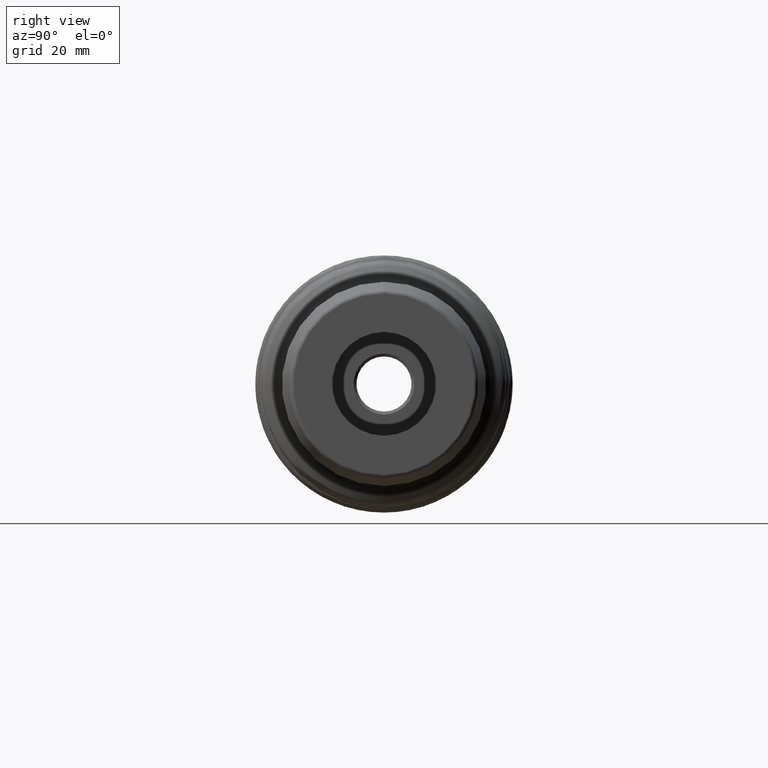
[diagram: clean part render]
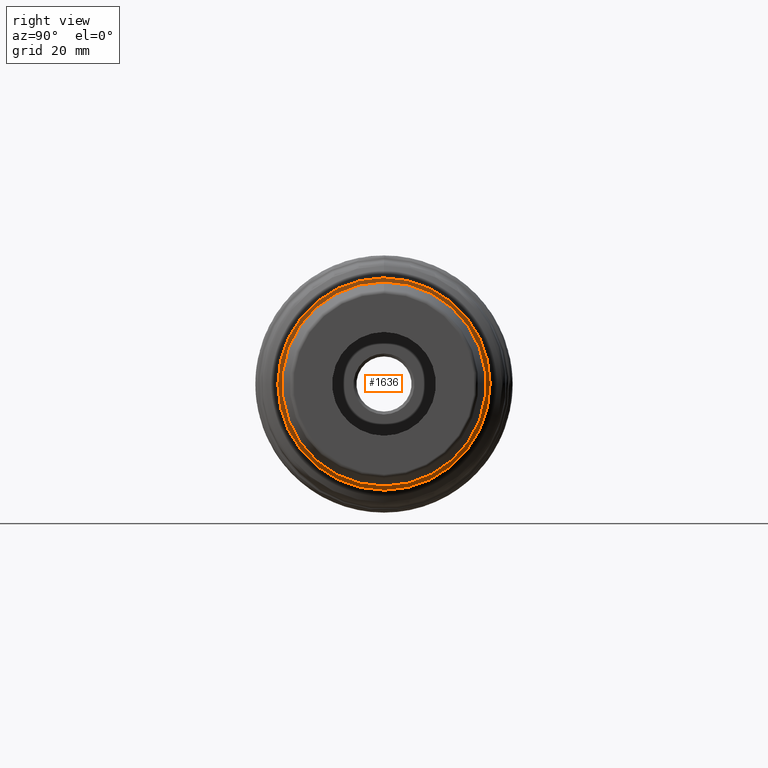
[diagram: same view with one face highlighted and labeled with its STEP entity id]
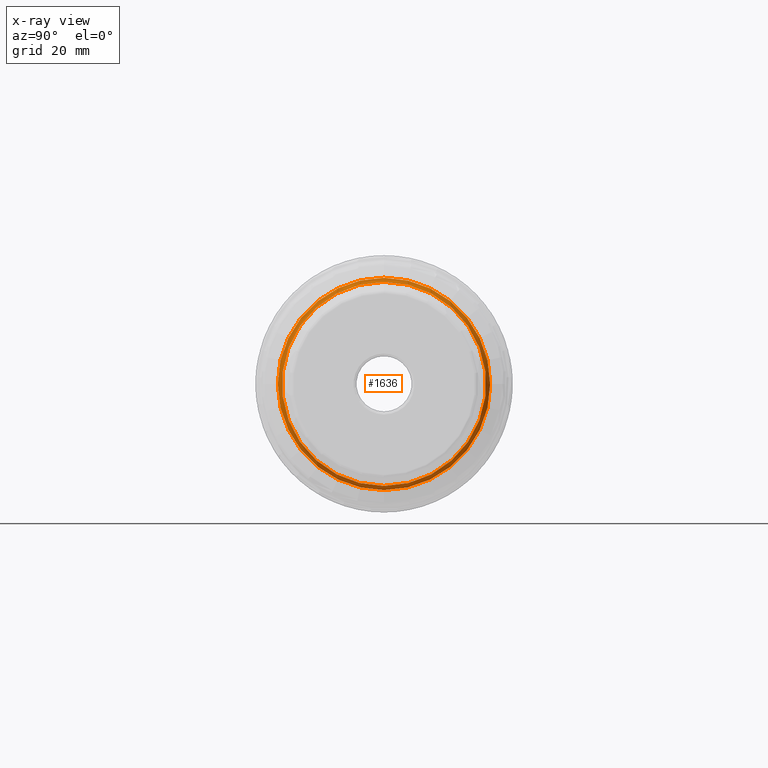
[diagram: x-ray of the same camera — body ghosted, the highlighted face saturated]
A machine part, right view. The second image highlights one B-rep face of the part: STEP entity #1636.
The next image is the same camera in x-ray: the body ghosted, the highlighted face saturated — about 0% of this face is hidden behind the body in this view.
In plain terms, the highlighted toroidal blend (fillet) surface has major radius 27 mm and minor (blend) radius 2 mm.
Its self-contained STEP definition (entity closure, byte-faithful):
#57=TOROIDAL_SURFACE('',#1752,27.,2.);
#135=FACE_OUTER_BOUND('',#226,.T.);
#226=EDGE_LOOP('',(#1089,#1090,#1091,#1092,#1093,#1094));
#473=CIRCLE('',#1753,26.);
#474=CIRCLE('',#1754,2.);
#475=CIRCLE('',#1755,25.);
#476=CIRCLE('',#1756,25.);
#477=CIRCLE('',#1757,26.);
#628=VERTEX_POINT('',#2686);
#629=VERTEX_POINT('',#2687);
#630=VERTEX_POINT('',#2689);
#631=VERTEX_POINT('',#2691);
#816=EDGE_CURVE('',#628,#629,#473,.T.);
#817=EDGE_CURVE('',#629,#630,#474,.T.);
#818=EDGE_CURVE('',#630,#631,#475,.T.);
#819=EDGE_CURVE('',#631,#630,#476,.T.);
#820=EDGE_CURVE('',#629,#628,#477,.T.);
#1089=ORIENTED_EDGE('',*,*,#816,.T.);
#1090=ORIENTED_EDGE('',*,*,#817,.T.);
#1091=ORIENTED_EDGE('',*,*,#818,.T.);
#1092=ORIENTED_EDGE('',*,*,#819,.T.);
#1093=ORIENTED_EDGE('',*,*,#817,.F.);
#1094=ORIENTED_EDGE('',*,*,#820,.T.);
#1636=ADVANCED_FACE('',(#135),#57,.F.);
#1752=AXIS2_PLACEMENT_3D('',#2685,#2025,#2026);
#1753=AXIS2_PLACEMENT_3D('',#2688,#2027,#2028);
#1754=AXIS2_PLACEMENT_3D('',#2690,#2029,#2030);
#1755=AXIS2_PLACEMENT_3D('',#2692,#2031,#2032);
#1756=AXIS2_PLACEMENT_3D('',#2693,#2033,#2034);
#1757=AXIS2_PLACEMENT_3D('',#2694,#2035,#2036);
#2025=DIRECTION('center_axis',(1.,0.,0.));
#2026=DIRECTION('ref_axis',(0.,0.,-1.));
#2027=DIRECTION('center_axis',(1.,0.,0.));
#2028=DIRECTION('ref_axis',(0.,0.,1.));
#2029=DIRECTION('center_axis',(0.,-1.,-1.22464679914735E-16));
#2030=DIRECTION('ref_axis',(0.,-1.22464679914735E-16,1.));
#2031=DIRECTION('center_axis',(-1.,0.,0.));
#2032=DIRECTION('ref_axis',(0.,1.22464679914735E-16,1.));
#2033=DIRECTION('center_axis',(-1.,0.,0.));
#2034=DIRECTION('ref_axis',(0.,1.22464679914735E-16,1.));
#2035=DIRECTION('center_axis',(1.,0.,0.));
#2036=DIRECTION('ref_axis',(0.,0.,1.));
#2685=CARTESIAN_POINT('Origin',(46.1547005383792,0.,0.));
#2686=CARTESIAN_POINT('',(44.4226497308104,0.,-26.));
#2687=CARTESIAN_POINT('',(44.4226497308104,-3.18408167778312E-15,26.));
#2688=CARTESIAN_POINT('Origin',(44.4226497308104,-3.18408167778312E-15,
0.));
#2689=CARTESIAN_POINT('',(46.1547005383792,-3.06161699786838E-15,25.));
#2690=CARTESIAN_POINT('Origin',(46.1547005383792,-3.30654635769785E-15,
27.));
#2691=CARTESIAN_POINT('',(46.1547005383792,-6.12323399573677E-15,-25.));
#2692=CARTESIAN_POINT('Origin',(46.1547005383792,0.,0.));
#2693=CARTESIAN_POINT('Origin',(46.1547005383792,0.,0.));
#2694=CARTESIAN_POINT('Origin',(44.4226497308104,-3.18408167778312E-15,
0.));